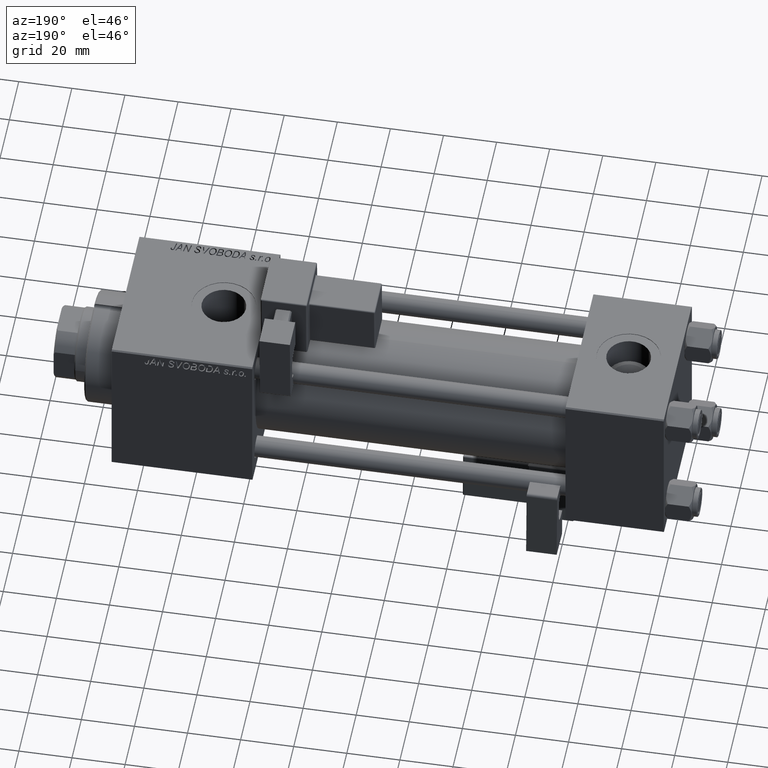
[diagram: clean part render]
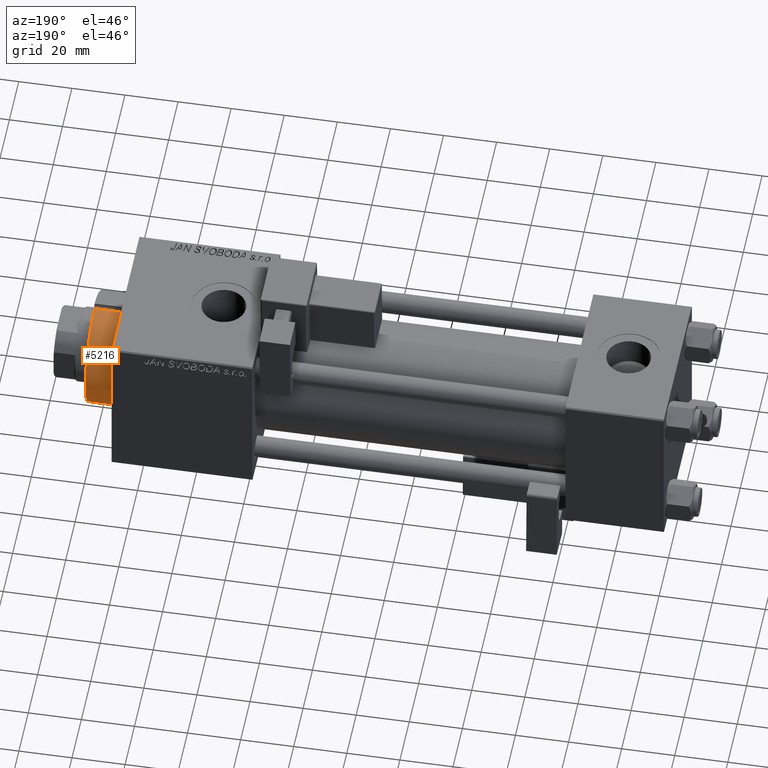
[diagram: same view with one face highlighted and labeled with its STEP entity id]
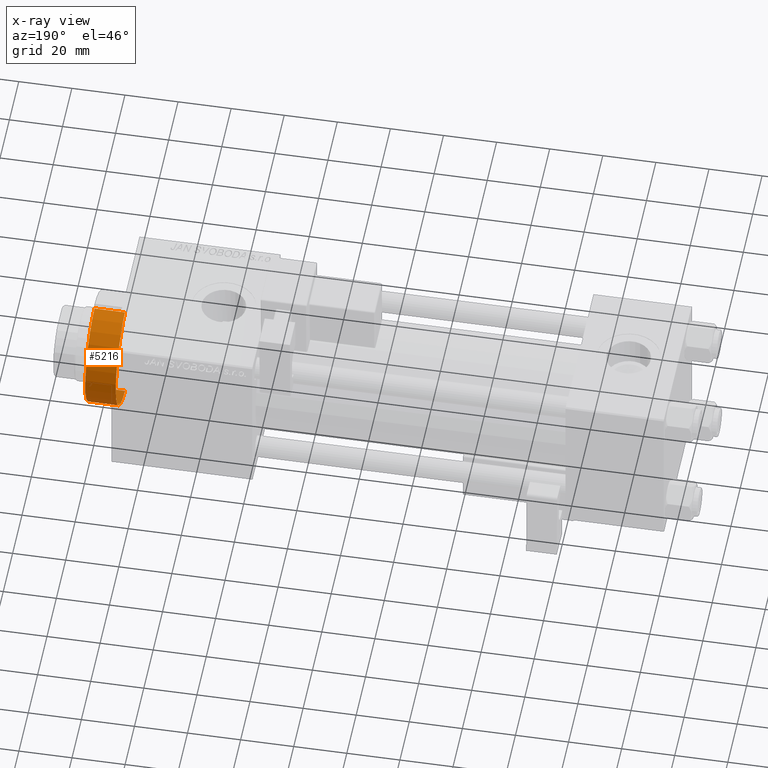
[diagram: x-ray of the same camera — body ghosted, the highlighted face saturated]
A machine part, auxiliary view. The second image highlights one B-rep face of the part: STEP entity #5216.
The next image is the same camera in x-ray: the body ghosted, the highlighted face saturated — about 3% of this face is hidden behind the body in this view.
In plain terms, the highlighted cylindrical surface (partial cylindrical patch) has radius 21 mm, axis along (-1, -0, -0).
Its self-contained STEP definition (entity closure, byte-faithful):
#2287 = VERTEX_POINT ( 'NONE', #26174 ) ;
#2720 = VECTOR ( 'NONE', #10498, 1000.000000000000000 ) ;
#2856 = DIRECTION ( 'NONE',  ( 0.000000000000000000, 0.000000000000000000, -1.000000000000000000 ) ) ;
#2928 = ORIENTED_EDGE ( 'NONE', *, *, #49129, .T. ) ;
#5216 = ADVANCED_FACE ( 'NONE', ( #6695 ), #23274, .T. ) ;
#6427 = EDGE_CURVE ( 'NONE', #6550, #2287, #27680, .T. ) ;
#6550 = VERTEX_POINT ( 'NONE', #50248 ) ;
#6695 = FACE_OUTER_BOUND ( 'NONE', #23955, .T. ) ;
#7234 = CARTESIAN_POINT ( 'NONE',  ( 0.000000000000000000, 0.000000000000000000, 40.70000000000000284 ) ) ;
#8854 = AXIS2_PLACEMENT_3D ( 'NONE', #48808, #2856, #11826 ) ;
#10498 = DIRECTION ( 'NONE',  ( 0.000000000000000000, 0.000000000000000000, -1.000000000000000000 ) ) ;
#11035 = DIRECTION ( 'NONE',  ( -0.000000000000000000, -0.000000000000000000, -1.000000000000000000 ) ) ;
#11826 = DIRECTION ( 'NONE',  ( 1.000000000000000000, 0.000000000000000000, 0.000000000000000000 ) ) ;
#13483 = AXIS2_PLACEMENT_3D ( 'NONE', #7234, #11035, #23538 ) ;
#15036 = CARTESIAN_POINT ( 'NONE',  ( 20.96385542168674831, 1.231570484631385076, 28.69999999999999929 ) ) ;
#15250 = VECTOR ( 'NONE', #36125, 1000.000000000000000 ) ;
#17616 = ORIENTED_EDGE ( 'NONE', *, *, #6427, .T. ) ;
#19451 = CARTESIAN_POINT ( 'NONE',  ( 20.96385542168674831, 1.231570484631384410, 32.20000000000000284 ) ) ;
#23274 = CYLINDRICAL_SURFACE ( 'NONE', #13483, 21.00000000000000000 ) ;
#23538 = DIRECTION ( 'NONE',  ( -1.000000000000000000, 0.000000000000000000, 0.000000000000000000 ) ) ;
#23955 = EDGE_LOOP ( 'NONE', ( #49022, #17616, #2928, #37490 ) ) ;
#24983 = CIRCLE ( 'NONE', #42382, 21.00000000000000000 ) ;
#26174 = CARTESIAN_POINT ( 'NONE',  ( -20.96385542168674831, 1.231570484631384410, 40.19999999999998863 ) ) ;
#26706 = VERTEX_POINT ( 'NONE', #38269 ) ;
#27611 = LINE ( 'NONE', #19451, #2720 ) ;
#27680 = LINE ( 'NONE', #34786, #15250 ) ;
#29076 = DIRECTION ( 'NONE',  ( 0.000000000000000000, 0.000000000000000000, 1.000000000000000000 ) ) ;
#30174 = VERTEX_POINT ( 'NONE', #15036 ) ;
#34786 = CARTESIAN_POINT ( 'NONE',  ( -20.96385542168674831, 1.231570484631384410, 32.20000000000000284 ) ) ;
#36125 = DIRECTION ( 'NONE',  ( -0.000000000000000000, -0.000000000000000000, 1.000000000000000000 ) ) ;
#37490 = ORIENTED_EDGE ( 'NONE', *, *, #51726, .T. ) ;
#38269 = CARTESIAN_POINT ( 'NONE',  ( 20.96385542168674831, 1.231570484631384188, 40.19999999999998863 ) ) ;
#40165 = EDGE_CURVE ( 'NONE', #30174, #6550, #24983, .T. ) ;
#42382 = AXIS2_PLACEMENT_3D ( 'NONE', #49747, #29076, #45144 ) ;
#44306 = CIRCLE ( 'NONE', #8854, 21.00000000000000000 ) ;
#45144 = DIRECTION ( 'NONE',  ( 1.000000000000000000, 0.000000000000000000, 0.000000000000000000 ) ) ;
#48808 = CARTESIAN_POINT ( 'NONE',  ( 0.000000000000000000, 0.000000000000000000, 40.19999999999998863 ) ) ;
#49022 = ORIENTED_EDGE ( 'NONE', *, *, #40165, .T. ) ;
#49129 = EDGE_CURVE ( 'NONE', #2287, #26706, #44306, .T. ) ;
#49747 = CARTESIAN_POINT ( 'NONE',  ( 0.000000000000000000, 0.000000000000000000, 28.69999999999999929 ) ) ;
#50248 = CARTESIAN_POINT ( 'NONE',  ( -20.96385542168674831, 1.231570484631392626, 28.69999999999999929 ) ) ;
#51726 = EDGE_CURVE ( 'NONE', #26706, #30174, #27611, .T. ) ;